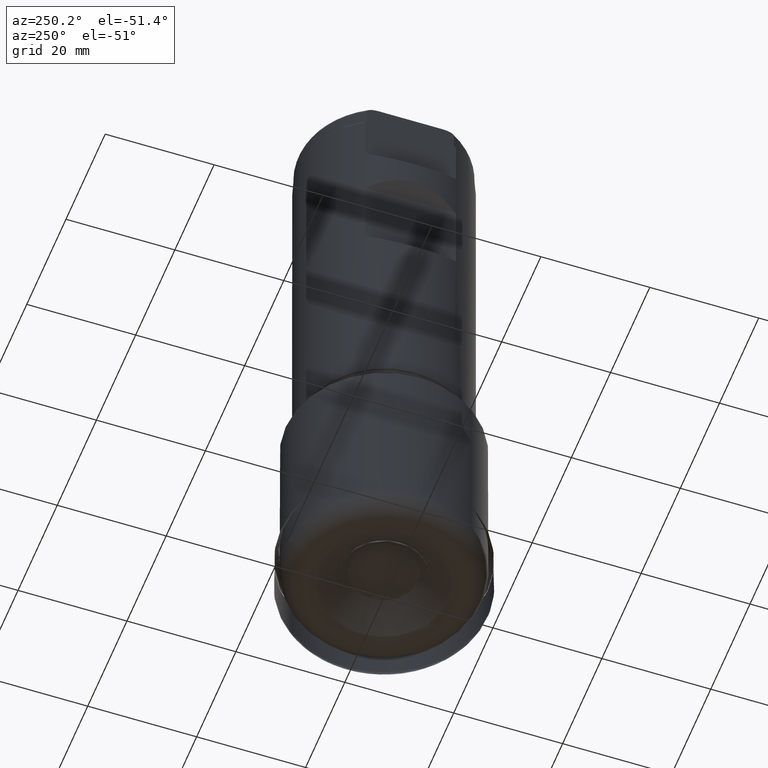
[diagram: clean part render]
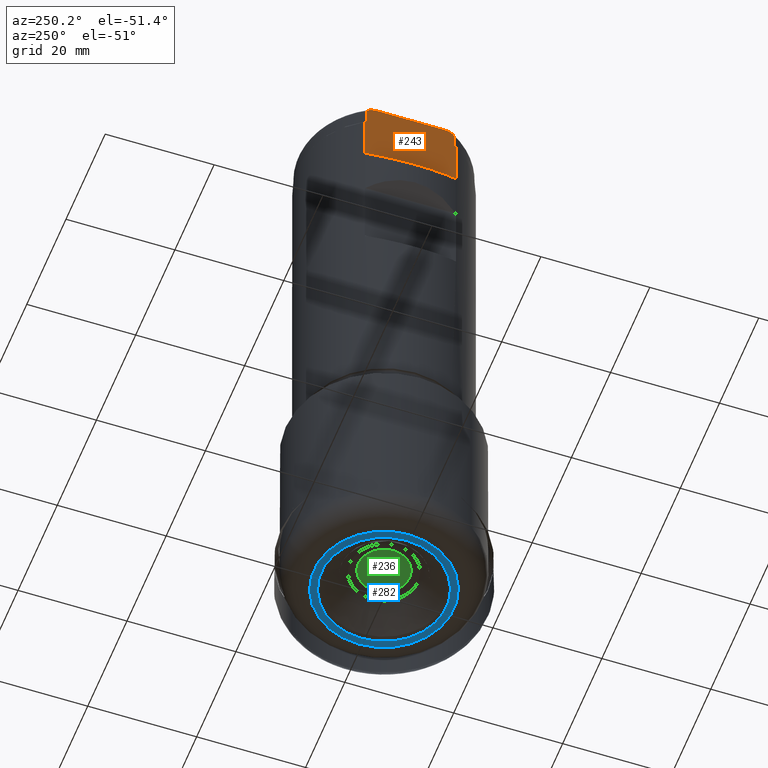
[diagram: same view with three faces highlighted in distinct colors, each labeled with its STEP entity id]
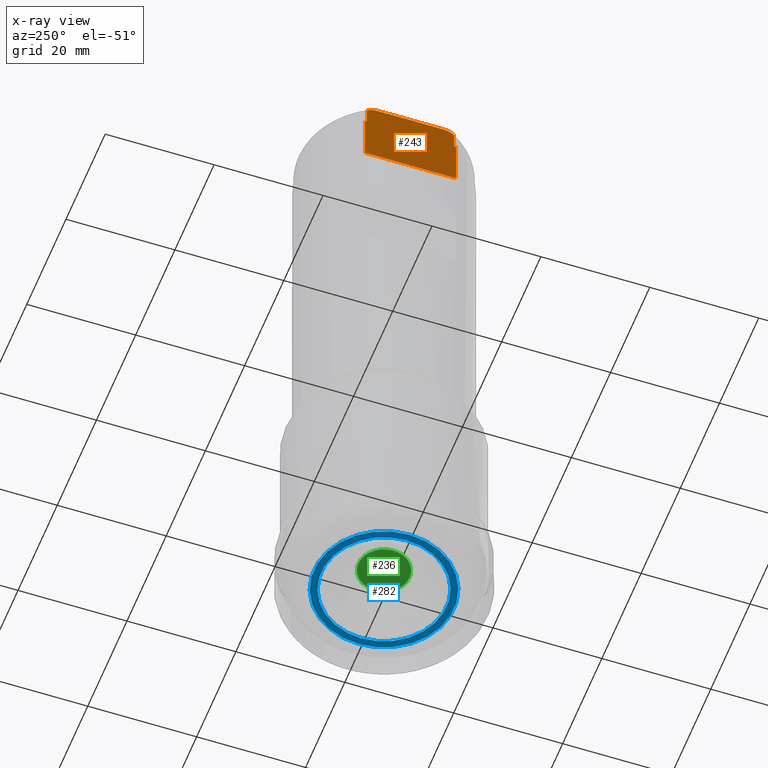
[diagram: x-ray of the same camera — body ghosted, the three highlighted faces saturated]
A machine part, auxiliary view with three faces highlighted in distinct colors.
The next image is the same camera in x-ray (body ghosted, the three faces saturated) — at least one of them is partly hidden behind the body in this view.
Their STEP definitions:

[orange] entity #243 — the highlighted planar face has unit normal (-1, 0, 0).
#197=PLANE('',#1065);
#215=FACE_OUTER_BOUND('',#474,.T.);
#243=ADVANCED_FACE('',(#215),#197,.T.);
#300=LINE('',#1723,#313);
#301=LINE('',#1756,#314);
#302=LINE('',#1763,#315);
#303=LINE('',#1767,#316);
#304=LINE('',#2163,#317);
#305=LINE('',#2165,#318);
#313=VECTOR('',#1120,1.);
#314=VECTOR('',#1123,1.);
#315=VECTOR('',#1130,1.);
#316=VECTOR('',#1133,1.);
#317=VECTOR('',#1186,1.);
#318=VECTOR('',#1189,1.);
#474=EDGE_LOOP('',(#618,#619,#620,#621,#622,#623,#624,#625,#626,#627));
#618=ORIENTED_EDGE('',*,*,#812,.T.);
#619=ORIENTED_EDGE('',*,*,#823,.F.);
#620=ORIENTED_EDGE('',*,*,#821,.F.);
#621=ORIENTED_EDGE('',*,*,#825,.F.);
#622=ORIENTED_EDGE('',*,*,#841,.F.);
#623=ORIENTED_EDGE('',*,*,#826,.F.);
#624=ORIENTED_EDGE('',*,*,#819,.F.);
#625=ORIENTED_EDGE('',*,*,#822,.F.);
#626=ORIENTED_EDGE('',*,*,#816,.T.);
#627=ORIENTED_EDGE('',*,*,#842,.T.);
#737=VERTEX_POINT('',#1724);
#738=VERTEX_POINT('',#1725);
#741=VERTEX_POINT('',#1755);
#742=VERTEX_POINT('',#1757);
#743=VERTEX_POINT('',#1761);
#744=VERTEX_POINT('',#1762);
#745=VERTEX_POINT('',#1764);
#746=VERTEX_POINT('',#1766);
#747=VERTEX_POINT('',#1779);
#748=VERTEX_POINT('',#1780);
#812=EDGE_CURVE('',#737,#738,#300,.T.);
#816=EDGE_CURVE('',#742,#741,#301,.T.);
#819=EDGE_CURVE('',#744,#745,#302,.T.);
#821=EDGE_CURVE('',#746,#743,#303,.T.);
#822=EDGE_CURVE('',#742,#744,#983,.T.);
#823=EDGE_CURVE('',#743,#738,#984,.T.);
#825=EDGE_CURVE('',#747,#746,#985,.T.);
#826=EDGE_CURVE('',#745,#748,#986,.T.);
#841=EDGE_CURVE('',#748,#747,#304,.T.);
#842=EDGE_CURVE('',#741,#737,#305,.T.);
#983=B_SPLINE_CURVE_WITH_KNOTS('',3,(#1769,#1770,#1771,#1772),
 .UNSPECIFIED.,.F.,.F.,(4,4),(0.,1.),.UNSPECIFIED.);
#984=B_SPLINE_CURVE_WITH_KNOTS('',3,(#1773,#1774,#1775,#1776),
 .UNSPECIFIED.,.F.,.F.,(4,4),(0.,1.),.UNSPECIFIED.);
#985=B_SPLINE_CURVE_WITH_KNOTS('',3,(#1781,#1782,#1783,#1784,#1785,#1786,
#1787,#1788),.UNSPECIFIED.,.F.,.F.,(4,2,2,4),(0.,0.500000000000002,0.75,
1.),.UNSPECIFIED.);
#986=B_SPLINE_CURVE_WITH_KNOTS('',3,(#1789,#1790,#1791,#1792,#1793,#1794,
#1795,#1796),.UNSPECIFIED.,.F.,.F.,(4,2,2,4),(0.,0.249999999999999,0.5,
1.),.UNSPECIFIED.);
#1065=AXIS2_PLACEMENT_3D('',#2166,#1190,#1191);
#1120=DIRECTION('',(1.17145536458252E-15,0.,1.));
#1123=DIRECTION('',(-1.17145536458252E-15,0.,-1.));
#1130=DIRECTION('',(1.17145536458252E-15,0.,1.));
#1133=DIRECTION('',(-1.17145536458252E-15,0.,-1.));
#1186=DIRECTION('',(0.,-1.,0.));
#1189=DIRECTION('',(0.,-1.,0.));
#1190=DIRECTION('',(-1.,0.,1.44464016394895E-15));
#1191=DIRECTION('',(1.44502465548868E-15,0.,1.));
#1723=CARTESIAN_POINT('',(-13.4873999999999,-8.37291264972951,114.3));
#1724=CARTESIAN_POINT('',(-13.4873999999999,-8.3729126497295,101.724264068712));
#1725=CARTESIAN_POINT('',(-13.4873999999999,-8.37291264972951,110.3));
#1755=CARTESIAN_POINT('',(-13.4873999999999,8.3729126497295,101.724264068712));
#1756=CARTESIAN_POINT('',(-13.4873999999999,8.37291264972951,114.3));
#1757=CARTESIAN_POINT('',(-13.4873999999999,8.37291264972951,110.3));
#1761=CARTESIAN_POINT('',(-13.4873999999999,-7.98721893026601,110.646410161514));
#1762=CARTESIAN_POINT('',(-13.4873999999999,7.98721893026601,110.646410161514));
#1763=CARTESIAN_POINT('',(-13.4874,7.98721893026601,1.94844397472451E-14));
#1764=CARTESIAN_POINT('',(-13.4873999999999,7.98721893026607,113.3));
#1766=CARTESIAN_POINT('',(-13.4873999999999,-7.98721893026606,113.3));
#1767=CARTESIAN_POINT('',(-13.4874,-7.98721893026601,1.94844397472451E-14));
#1769=CARTESIAN_POINT('',(-13.4873999999999,8.37291264972951,110.3));
#1770=CARTESIAN_POINT('',(-13.4873999999999,8.24537216173965,110.416512233654));
#1771=CARTESIAN_POINT('',(-13.4873999999999,8.11683755434124,110.532012782716));
#1772=CARTESIAN_POINT('',(-13.4873999999999,7.98721893026603,110.646410161514));
#1773=CARTESIAN_POINT('',(-13.4873999999999,-7.98721893026604,110.646410161514));
#1774=CARTESIAN_POINT('',(-13.4873999999999,-8.1168500307247,110.532001771447));
#1775=CARTESIAN_POINT('',(-13.4873999999999,-8.24538408682386,110.416501339716));
#1776=CARTESIAN_POINT('',(-13.4873999999999,-8.37291264972952,110.3));
#1779=CARTESIAN_POINT('',(-13.4873999999999,-5.78322282468869,114.3));
#1780=CARTESIAN_POINT('',(-13.4873999999999,5.78322282468872,114.3));
#1781=CARTESIAN_POINT('',(-13.4873999999999,-5.78322282468869,114.3));
#1782=CARTESIAN_POINT('',(-13.4873999999999,-6.21539935382885,114.3));
#1783=CARTESIAN_POINT('',(-13.4873999999999,-6.66033392319205,114.260471176885));
#1784=CARTESIAN_POINT('',(-13.4873999999999,-7.284466734816,114.066460345474));
#1785=CARTESIAN_POINT('',(-13.4873999999999,-7.48411378488175,113.981558432478));
#1786=CARTESIAN_POINT('',(-13.4873999999999,-7.83818963749524,113.714712701713));
#1787=CARTESIAN_POINT('',(-13.4873999999999,-7.98721893026606,113.516284063495));
#1788=CARTESIAN_POINT('',(-13.4873999999999,-7.98721893026606,113.3));
#1789=CARTESIAN_POINT('',(-13.4873999999999,7.98721893026608,113.3));
#1790=CARTESIAN_POINT('',(-13.4873999999999,7.98721893026595,113.520937127672));
#1791=CARTESIAN_POINT('',(-13.4873999999999,7.83769122277275,113.714895925195));
#1792=CARTESIAN_POINT('',(-13.4873999999999,7.48601411077844,113.980317907556));
#1793=CARTESIAN_POINT('',(-13.4873999999999,7.28189737654,114.067498991133));
#1794=CARTESIAN_POINT('',(-13.4873999999999,6.65697861353613,114.261029312967));
#1795=CARTESIAN_POINT('',(-13.4873999999999,6.216608442675,114.3));
#1796=CARTESIAN_POINT('',(-13.4873999999999,5.78322282468872,114.3));
#2163=CARTESIAN_POINT('',(-13.4873999999999,17.5,114.3));
#2165=CARTESIAN_POINT('',(-13.4873999999999,17.5,101.724264068712));
#2166=CARTESIAN_POINT('',(-13.4873999999999,17.5,114.3));

[blue] entity #282 — the highlighted face is a SurfaceOfRevolution surface.
#141=SURFACE_OF_REVOLUTION('',#1021,#179);
#179=AXIS1_PLACEMENT('',#2569,#1305);
#282=ADVANCED_FACE('',(#422,#423),#141,.F.);
#422=FACE_BOUND('',#544,.T.);
#423=FACE_BOUND('',#545,.T.);
#544=EDGE_LOOP('',(#712));
#545=EDGE_LOOP('',(#713));
#712=ORIENTED_EDGE('',*,*,#879,.T.);
#713=ORIENTED_EDGE('',*,*,#880,.F.);
#795=VERTEX_POINT('',#2553);
#796=VERTEX_POINT('',#2562);
#879=EDGE_CURVE('',#795,#795,#931,.T.);
#880=EDGE_CURVE('',#796,#796,#932,.T.);
#931=CIRCLE('',#1103,11.5001104003983);
#932=CIRCLE('',#1104,12.8609603137448);
#1021=B_SPLINE_CURVE_WITH_KNOTS('',5,(#2563,#2564,#2565,#2566,#2567,#2568),
 .UNSPECIFIED.,.F.,.F.,(6,6),(0.,1.),.UNSPECIFIED.);
#1103=AXIS2_PLACEMENT_3D('',#2552,#1300,#1301);
#1104=AXIS2_PLACEMENT_3D('',#2561,#1303,#1304);
#1300=DIRECTION('',(0.,0.,-1.));
#1301=DIRECTION('',(-1.,0.,0.));
#1303=DIRECTION('',(0.,0.,-1.));
#1304=DIRECTION('',(-1.,0.,0.));
#1305=DIRECTION('',(0.,0.,-1.));
#2552=CARTESIAN_POINT('',(0.,0.,0.276057418529579));
#2553=CARTESIAN_POINT('',(-11.5001104003983,0.,0.276057418529579));
#2561=CARTESIAN_POINT('',(0.,0.,0.271793055711397));
#2562=CARTESIAN_POINT('',(-12.8609603137448,0.,0.271793055711397));
#2563=CARTESIAN_POINT('',(-6.43048015687246,-11.1379183487664,0.271793055711397));
#2564=CARTESIAN_POINT('',(-6.29439515414343,-10.9022122098916,0.272638649388819));
#2565=CARTESIAN_POINT('',(-6.15831015638099,-10.6665060796192,0.273487440470115));
#2566=CARTESIAN_POINT('',(-6.02222516423415,-10.4307999590733,0.274339816899129));
#2567=CARTESIAN_POINT('',(-5.88614017847993,-10.1950938495997,0.275196255866138));
#2568=CARTESIAN_POINT('',(-5.75005520019918,-9.9593877530705,0.276057418529579));
#2569=CARTESIAN_POINT('',(0.,0.,0.));

[green] entity #236 — the highlighted planar face has unit normal (0, 0, 1).
#195=PLANE('',#1057);
#214=FACE_OUTER_BOUND('',#462,.T.);
#236=ADVANCED_FACE('',(#214),#195,.F.);
#462=EDGE_LOOP('',(#605));
#605=ORIENTED_EDGE('',*,*,#837,.T.);
#759=VERTEX_POINT('',#1995);
#837=EDGE_CURVE('',#759,#759,#990,.T.);
#990=B_SPLINE_CURVE_WITH_KNOTS('',3,(#1977,#1978,#1979,#1980,#1981,#1982,
#1983,#1984,#1985,#1986,#1987,#1988,#1989,#1990,#1991,#1992,#1993,#1994),
 .UNSPECIFIED.,.T.,.F.,(2,2,2,2,2,2,2,2,2,2,2),(-0.125,0.,0.125,0.25,0.375,
0.5,0.625,0.75,0.875,1.,1.125),.UNSPECIFIED.);
#1057=AXIS2_PLACEMENT_3D('',#1996,#1172,#1173);
#1172=DIRECTION('',(1.17145536458252E-15,0.,1.));
#1173=DIRECTION('',(0.809016994374947,0.587785252292473,-9.48026379621325E-16));
#1977=CARTESIAN_POINT('',(4.69347836300354,1.23984927293956,5.49999999999999));
#1978=CARTESIAN_POINT('',(4.69347836300354,-1.23984927293956,5.49999999999999));
#1979=CARTESIAN_POINT('',(4.18386577220999,-2.45460918648249,5.5));
#1980=CARTESIAN_POINT('',(2.450285187721,-4.18639959357316,5.5));
#1981=CARTESIAN_POINT('',(1.23544564587151,-4.69403558872634,5.5));
#1982=CARTESIAN_POINT('',(-1.23967584376742,-4.69292018411903,5.5));
#1983=CARTESIAN_POINT('',(-2.4540895170652,-4.18370702463163,5.5));
#1984=CARTESIAN_POINT('',(-4.18431908937241,-2.4530457769954,5.50000000000001));
#1985=CARTESIAN_POINT('',(-4.69252763025117,-1.22829103571274,5.50000000000001));
#1986=CARTESIAN_POINT('',(-4.69442627544923,1.22101448535829,5.5));
#1987=CARTESIAN_POINT('',(-4.18254371522144,2.45579053241705,5.50000000000001));
#1988=CARTESIAN_POINT('',(-2.45214243729764,4.18468356462607,5.5));
#1989=CARTESIAN_POINT('',(-1.22768337771813,4.69292922110749,5.5));
#1990=CARTESIAN_POINT('',(1.22348100291988,4.69402656423503,5.5));
#1991=CARTESIAN_POINT('',(2.4423378700223,4.19441797992508,5.5));
#1992=CARTESIAN_POINT('',(4.19211428399243,2.44628990342733,5.5));
#1993=CARTESIAN_POINT('',(4.69347836300354,1.23984927293956,5.49999999999999));
#1994=CARTESIAN_POINT('',(4.69347836300354,-1.23984927293956,5.49999999999999));
#1995=CARTESIAN_POINT('',(4.69347836300354,1.47300197920138E-15,5.49999999999999));
#1996=CARTESIAN_POINT('',(6.62064018914391E-15,0.,5.5));